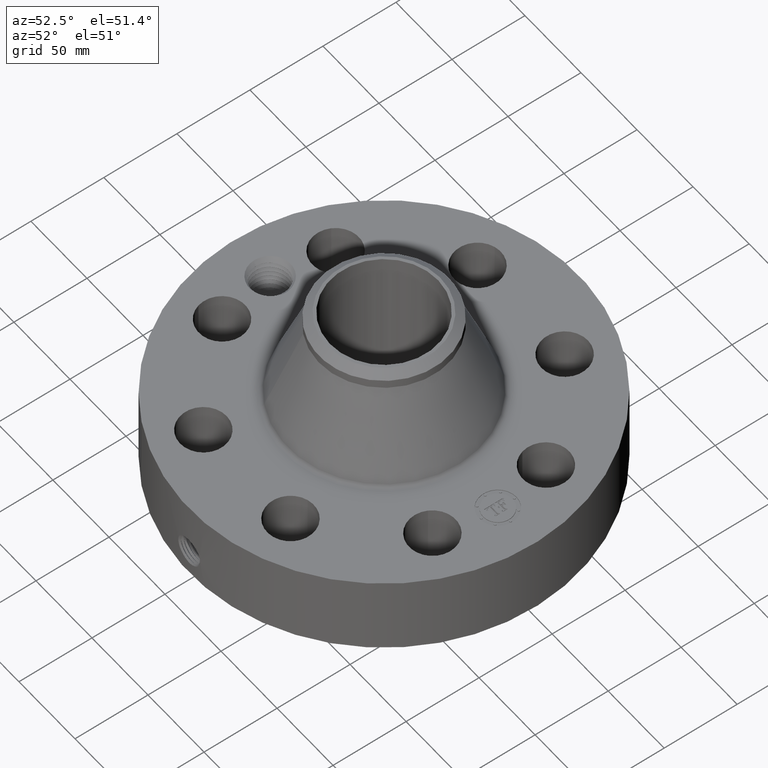
[diagram: clean part render]
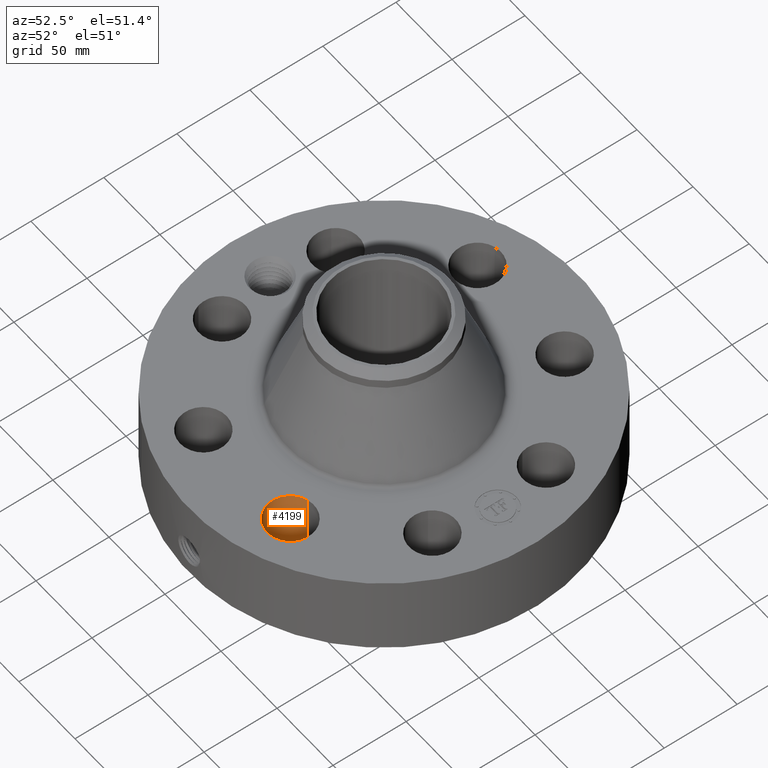
[diagram: same view with one face highlighted and labeled with its STEP entity id]
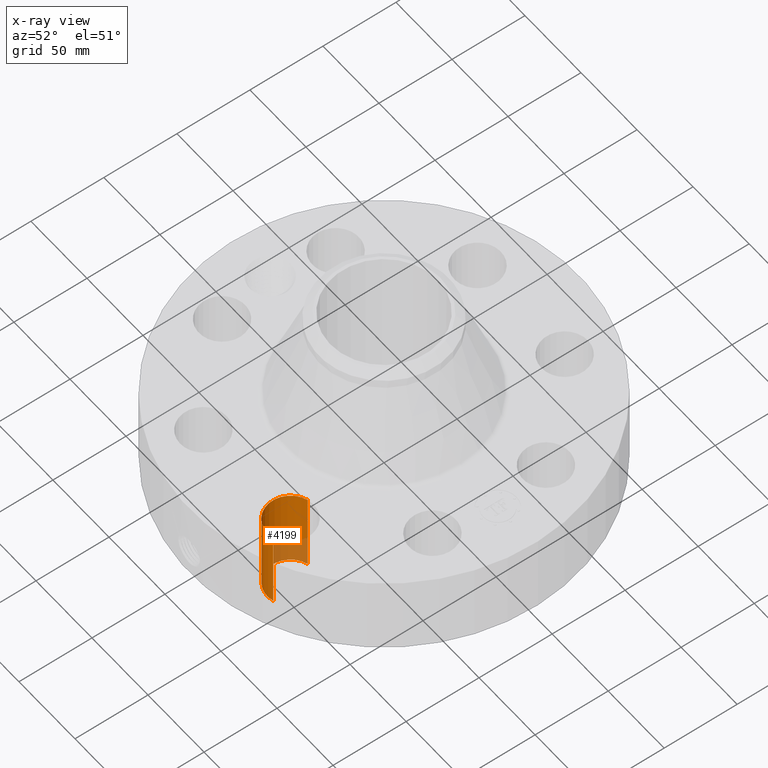
[diagram: x-ray of the same camera — body ghosted, the highlighted face saturated]
A machine part, auxiliary view. The second image highlights one B-rep face of the part: STEP entity #4199.
The next image is the same camera in x-ray: the body ghosted, the highlighted face saturated — about 22% of this face is hidden behind the body in this view.
In plain terms, the highlighted cylindrical surface (edge-blend (fillet) strip) has radius 15.875 mm, axis along (0, -0, -1).
Its self-contained STEP definition (entity closure, byte-faithful):
#3012=AXIS2_PLACEMENT_3D('Circle Axis2P3D',#3010,#3011,$) ;
#4160=AXIS2_PLACEMENT_3D('Cylinder Axis2P3D',#4157,#4158,#4159) ;
#4190=AXIS2_PLACEMENT_3D('Circle Axis2P3D',#4188,#4189,$) ;
#3010=CARTESIAN_POINT('Axis2P3D Location',(1.53073372947,-3.69551813006,2.19200000001)) ;
#3014=CARTESIAN_POINT('Vertex',(1.70669593643,-4.2952366488,2.19200000001)) ;
#3016=CARTESIAN_POINT('Vertex',(1.3547715225,-3.09579961132,2.19200000001)) ;
#4157=CARTESIAN_POINT('Axis2P3D Location',(1.53073372947,-3.69551813006,2.18806299213)) ;
#4162=CARTESIAN_POINT('Line Origine',(1.3547715225,-3.09579961132,1.096)) ;
#4166=CARTESIAN_POINT('Vertex',(1.3547715225,-3.09579961132,0.)) ;
#4173=CARTESIAN_POINT('Vertex',(1.70669593643,-4.2952366488,0.)) ;
#4176=CARTESIAN_POINT('Line Origine',(1.70669593643,-4.2952366488,1.096)) ;
#4188=CARTESIAN_POINT('Axis2P3D Location',(1.53073372947,-3.69551813006,0.)) ;
#3011=DIRECTION('Axis2P3D Direction',(0.,0.,-0.0393700787402)) ;
#4158=DIRECTION('Axis2P3D Direction',(0.,-0.,-0.0393700787402)) ;
#4159=DIRECTION('Axis2P3D XDirection',(0.0110842335096,-0.0377775444876,0.)) ;
#4163=DIRECTION('Vector Direction',(0.,0.,-0.0393700787402)) ;
#4177=DIRECTION('Vector Direction',(0.,0.,-0.0393700787402)) ;
#4189=DIRECTION('Axis2P3D Direction',(0.,-0.,-0.0393700787402)) ;
#4164=VECTOR('Line Direction',#4163,0.0393700787402) ;
#4178=VECTOR('Line Direction',#4177,0.0393700787402) ;
#4194=ORIENTED_EDGE('',*,*,#4180,.F.) ;
#4195=ORIENTED_EDGE('',*,*,#4192,.T.) ;
#4196=ORIENTED_EDGE('',*,*,#4168,.T.) ;
#4197=ORIENTED_EDGE('',*,*,#3018,.F.) ;
#4199=ADVANCED_FACE('PartBody',(#4198),#4161,.F.) ;
#3013=CIRCLE('generated circle',#3012,0.625000000003) ;
#4191=CIRCLE('generated circle',#4190,0.625000000003) ;
#4161=CYLINDRICAL_SURFACE('generated cylinder',#4160,0.625000000003) ;
#3018=EDGE_CURVE('',#3015,#3017,#3013,.T.) ;
#4168=EDGE_CURVE('',#4167,#3017,#4165,.F.) ;
#4180=EDGE_CURVE('',#4174,#3015,#4179,.F.) ;
#4192=EDGE_CURVE('',#4174,#4167,#4191,.T.) ;
#4193=EDGE_LOOP('',(#4194,#4195,#4196,#4197)) ;
#4198=FACE_OUTER_BOUND('',#4193,.T.) ;
#4165=LINE('Line',#4162,#4164) ;
#4179=LINE('Line',#4176,#4178) ;
#3015=VERTEX_POINT('',#3014) ;
#3017=VERTEX_POINT('',#3016) ;
#4167=VERTEX_POINT('',#4166) ;
#4174=VERTEX_POINT('',#4173) ;